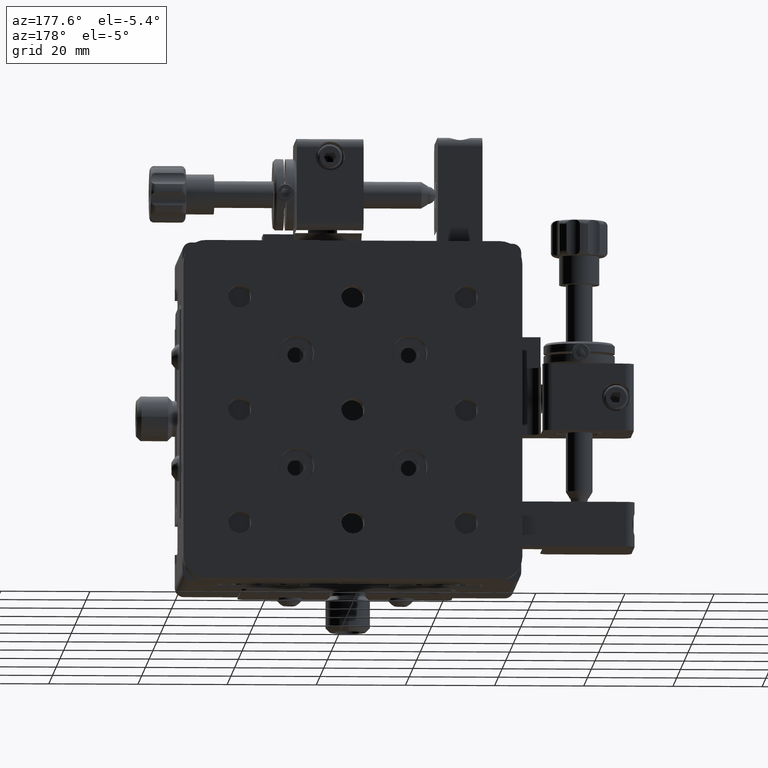
[diagram: clean part render]
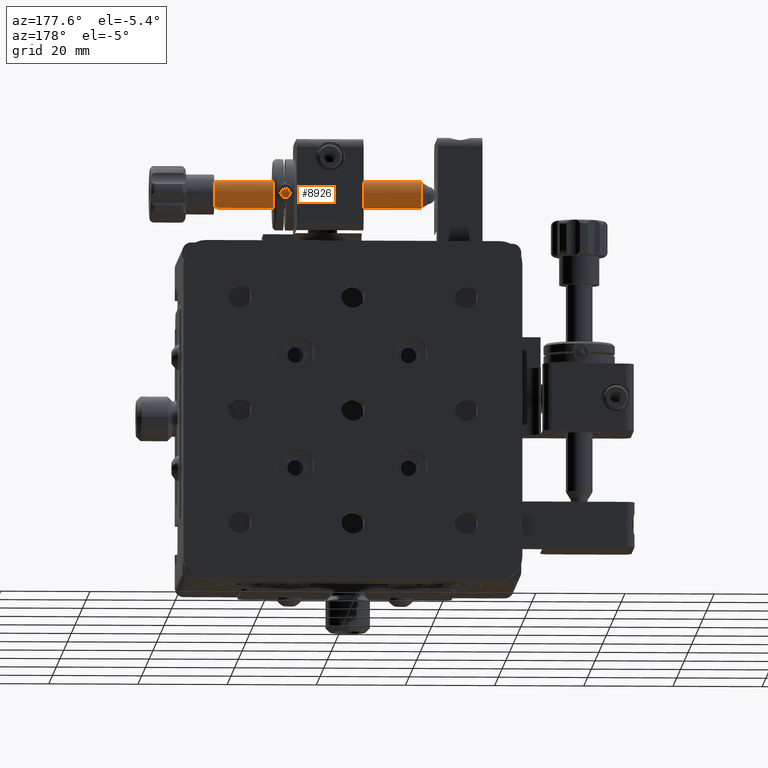
[diagram: same view with one face highlighted and labeled with its STEP entity id]
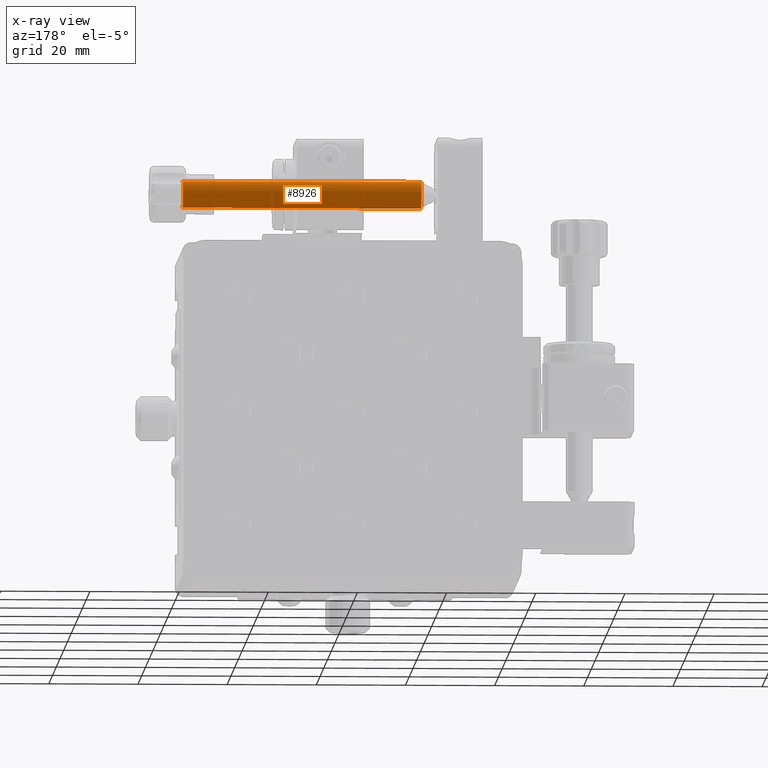
[diagram: x-ray of the same camera — body ghosted, the highlighted face saturated]
A machine part, auxiliary view. The second image highlights one B-rep face of the part: STEP entity #8926.
The next image is the same camera in x-ray: the body ghosted, the highlighted face saturated — about 0% of this face is hidden behind the body in this view.
In plain terms, the highlighted cylindrical surface (edge-blend (fillet) strip) has radius 3 mm, axis along (-1, -0, 0).
Its self-contained STEP definition (entity closure, byte-faithful):
#2371 = VERTEX_POINT ( 'NONE', #8469 ) ;
#3884 = LINE ( 'NONE', #46884, #33615 ) ;
#4269 = ORIENTED_EDGE ( 'NONE', *, *, #22828, .T. ) ;
#5046 = DIRECTION ( 'NONE',  ( -1.000000000000000000, -0.0000000000000000000, 0.0000000000000000000 ) ) ;
#8469 = CARTESIAN_POINT ( 'NONE',  ( 0.3901933846607204000, -7.198990437175374300, 157.6027614420817100 ) ) ;
#8926 = ADVANCED_FACE ( 'NONE', ( #20578 ), #26064, .T. ) ;
#8928 = LINE ( 'NONE', #38951, #19293 ) ;
#10877 = CARTESIAN_POINT ( 'NONE',  ( 53.89019338466071900, -7.198990437175374300, 157.6027614420817100 ) ) ;
#11349 = DIRECTION ( 'NONE',  ( 0.0000000000000000000, 0.1767609390482573200, 0.9842538140270416000 ) ) ;
#11511 = DIRECTION ( 'NONE',  ( -1.000000000000000000, -0.0000000000000000000, 0.0000000000000000000 ) ) ;
#12488 = EDGE_CURVE ( 'NONE', #45127, #2371, #3884, .T. ) ;
#17580 = EDGE_CURVE ( 'NONE', #28347, #27895, #8928, .T. ) ;
#18354 = DIRECTION ( 'NONE',  ( -1.000000000000000000, -0.0000000000000000000, 0.0000000000000000000 ) ) ;
#19293 = VECTOR ( 'NONE', #31013, 1000.000000000000000 ) ;
#19514 = ORIENTED_EDGE ( 'NONE', *, *, #12488, .F. ) ;
#20578 = FACE_OUTER_BOUND ( 'NONE', #27987, .T. ) ;
#21662 = CIRCLE ( 'NONE', #31157, 2.999999999999995100 ) ;
#22828 = EDGE_CURVE ( 'NONE', #45127, #28347, #21662, .T. ) ;
#23252 = AXIS2_PLACEMENT_3D ( 'NONE', #42186, #18354, #11349 ) ;
#23630 = DIRECTION ( 'NONE',  ( -1.000000000000000000, -0.0000000000000000000, 0.0000000000000000000 ) ) ;
#24478 = CARTESIAN_POINT ( 'NONE',  ( 0.3901933846607204000, -8.259556071464917400, 151.6972385579194600 ) ) ;
#24770 = CARTESIAN_POINT ( 'NONE',  ( 53.89019338466071900, -8.259556071464919200, 151.6972385579194600 ) ) ;
#25541 = EDGE_CURVE ( 'NONE', #2371, #27895, #45299, .T. ) ;
#26064 = CYLINDRICAL_SURFACE ( 'NONE', #23252, 2.999999999999995100 ) ;
#27895 = VERTEX_POINT ( 'NONE', #24478 ) ;
#27987 = EDGE_LOOP ( 'NONE', ( #4269, #43411, #48307, #19514 ) ) ;
#28273 = CARTESIAN_POINT ( 'NONE',  ( 53.89019338466071900, -7.729273254320145400, 154.6500000000006000 ) ) ;
#28347 = VERTEX_POINT ( 'NONE', #24770 ) ;
#31013 = DIRECTION ( 'NONE',  ( -1.000000000000000000, -0.0000000000000000000, 0.0000000000000000000 ) ) ;
#31157 = AXIS2_PLACEMENT_3D ( 'NONE', #28273, #5046, #32126 ) ;
#32126 = DIRECTION ( 'NONE',  ( 0.0000000000000000000, 0.1767609390482573200, 0.9842538140270416000 ) ) ;
#33615 = VECTOR ( 'NONE', #23630, 1000.000000000000000 ) ;
#34810 = CARTESIAN_POINT ( 'NONE',  ( 0.3901933846607204000, -7.729273254320145400, 154.6500000000006000 ) ) ;
#38642 = DIRECTION ( 'NONE',  ( 0.0000000000000000000, 0.1767609390482573200, 0.9842538140270416000 ) ) ;
#38951 = CARTESIAN_POINT ( 'NONE',  ( -19.14892396739544700, -8.259556071464917400, 151.6972385579194600 ) ) ;
#42186 = CARTESIAN_POINT ( 'NONE',  ( -19.14892396739544700, -7.729273254320145400, 154.6500000000006000 ) ) ;
#43411 = ORIENTED_EDGE ( 'NONE', *, *, #17580, .T. ) ;
#45127 = VERTEX_POINT ( 'NONE', #10877 ) ;
#45299 = CIRCLE ( 'NONE', #49871, 2.999999999999995100 ) ;
#46884 = CARTESIAN_POINT ( 'NONE',  ( -19.14892396739544700, -7.198990437175374300, 157.6027614420817100 ) ) ;
#48307 = ORIENTED_EDGE ( 'NONE', *, *, #25541, .F. ) ;
#49871 = AXIS2_PLACEMENT_3D ( 'NONE', #34810, #11511, #38642 ) ;